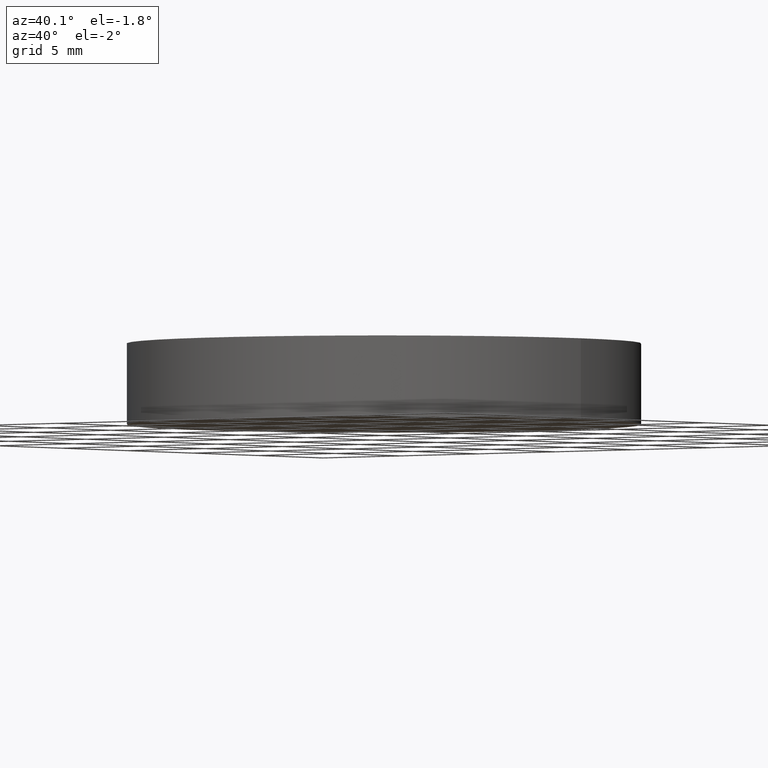
[diagram: clean part render]
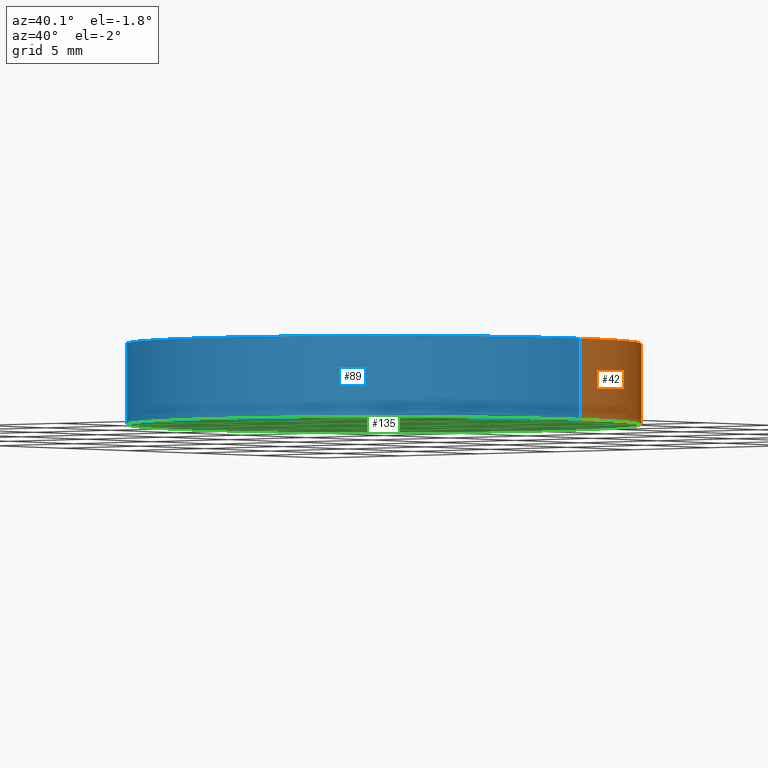
[diagram: same view with three faces highlighted in distinct colors, each labeled with its STEP entity id]
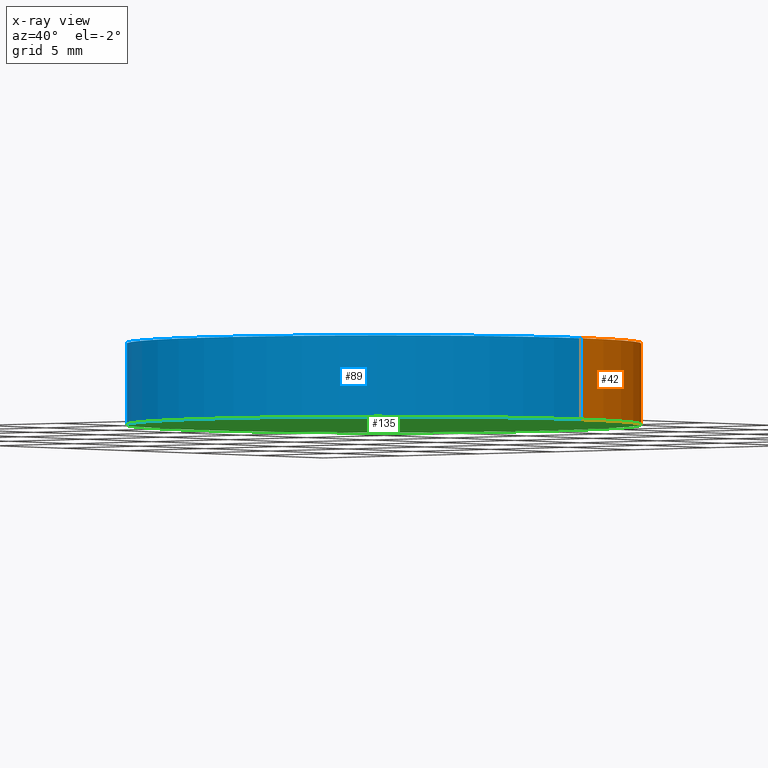
[diagram: x-ray of the same camera — body ghosted, the three highlighted faces saturated]
A machine part, auxiliary view with three faces highlighted in distinct colors.
The next image is the same camera in x-ray (body ghosted, the three faces saturated) — at least one of them is partly hidden behind the body in this view.
Their STEP definitions:

[orange] entity #42 — the highlighted cylindrical surface (partial cylindrical patch) has radius 12.7 mm, axis along (-0, -0, -1).
#4 = VERTEX_POINT ( 'NONE', #97 ) ;
#6 = CARTESIAN_POINT ( 'NONE',  ( 0.0000000000000000000, 0.0000000000000000000, 0.0000000000000000000 ) ) ;
#7 = DIRECTION ( 'NONE',  ( 0.0000000000000000000, 0.0000000000000000000, 1.000000000000000000 ) ) ;
#8 = CARTESIAN_POINT ( 'NONE',  ( -12.69999999999999900, 0.0000000000000000000, 4.000000000000000000 ) ) ;
#10 = EDGE_CURVE ( 'NONE', #4, #106, #130, .T. ) ;
#11 = ORIENTED_EDGE ( 'NONE', *, *, #10, .T. ) ;
#13 = FACE_OUTER_BOUND ( 'NONE', #60, .T. ) ;
#16 = EDGE_CURVE ( 'NONE', #73, #4, #107, .T. ) ;
#17 = VECTOR ( 'NONE', #57, 1000.000000000000000 ) ;
#18 = EDGE_CURVE ( 'NONE', #73, #91, #132, .T. ) ;
#21 = ORIENTED_EDGE ( 'NONE', *, *, #18, .F. ) ;
#26 = AXIS2_PLACEMENT_3D ( 'NONE', #6, #76, #134 ) ;
#34 = CARTESIAN_POINT ( 'NONE',  ( -12.69999999999999900, 0.0000000000000000000, 0.0000000000000000000 ) ) ;
#41 = CARTESIAN_POINT ( 'NONE',  ( 12.69999999999999900, 1.555301434917138400E-015, 4.000000000000000000 ) ) ;
#42 = ADVANCED_FACE ( 'NONE', ( #13 ), #131, .T. ) ;
#43 = DIRECTION ( 'NONE',  ( -1.000000000000000000, 0.0000000000000000000, 0.0000000000000000000 ) ) ;
#57 = DIRECTION ( 'NONE',  ( -0.0000000000000000000, -0.0000000000000000000, -1.000000000000000000 ) ) ;
#59 = DIRECTION ( 'NONE',  ( -0.0000000000000000000, -0.0000000000000000000, -1.000000000000000000 ) ) ;
#60 = EDGE_LOOP ( 'NONE', ( #21, #77, #11, #88 ) ) ;
#66 = CARTESIAN_POINT ( 'NONE',  ( 12.69999999999999900, 1.555301434917138400E-015, 4.000000000000000000 ) ) ;
#71 = EDGE_CURVE ( 'NONE', #91, #106, #72, .T. ) ;
#72 = LINE ( 'NONE', #96, #79 ) ;
#73 = VERTEX_POINT ( 'NONE', #41 ) ;
#74 = AXIS2_PLACEMENT_3D ( 'NONE', #99, #124, #43 ) ;
#76 = DIRECTION ( 'NONE',  ( 0.0000000000000000000, 0.0000000000000000000, 1.000000000000000000 ) ) ;
#77 = ORIENTED_EDGE ( 'NONE', *, *, #16, .T. ) ;
#79 = VECTOR ( 'NONE', #59, 1000.000000000000000 ) ;
#87 = AXIS2_PLACEMENT_3D ( 'NONE', #126, #7, #111 ) ;
#88 = ORIENTED_EDGE ( 'NONE', *, *, #71, .F. ) ;
#91 = VERTEX_POINT ( 'NONE', #8 ) ;
#96 = CARTESIAN_POINT ( 'NONE',  ( -12.69999999999999900, 0.0000000000000000000, 4.000000000000000000 ) ) ;
#97 = CARTESIAN_POINT ( 'NONE',  ( 12.69999999999999900, 1.555301434917138400E-015, 0.0000000000000000000 ) ) ;
#99 = CARTESIAN_POINT ( 'NONE',  ( 0.0000000000000000000, 0.0000000000000000000, 4.000000000000000000 ) ) ;
#106 = VERTEX_POINT ( 'NONE', #34 ) ;
#107 = LINE ( 'NONE', #66, #17 ) ;
#111 = DIRECTION ( 'NONE',  ( 1.000000000000000000, 0.0000000000000000000, 0.0000000000000000000 ) ) ;
#124 = DIRECTION ( 'NONE',  ( -0.0000000000000000000, -0.0000000000000000000, -1.000000000000000000 ) ) ;
#126 = CARTESIAN_POINT ( 'NONE',  ( 0.0000000000000000000, 0.0000000000000000000, 4.000000000000000000 ) ) ;
#130 = CIRCLE ( 'NONE', #26, 12.69999999999999900 ) ;
#131 = CYLINDRICAL_SURFACE ( 'NONE', #74, 12.69999999999999900 ) ;
#132 = CIRCLE ( 'NONE', #87, 12.69999999999999900 ) ;
#134 = DIRECTION ( 'NONE',  ( 1.000000000000000000, 0.0000000000000000000, 0.0000000000000000000 ) ) ;

[blue] entity #89 — the highlighted cylindrical surface (partial cylindrical patch) has radius 12.7 mm, axis along (-0, -0, -1).
#1 = EDGE_CURVE ( 'NONE', #91, #73, #121, .T. ) ;
#4 = VERTEX_POINT ( 'NONE', #97 ) ;
#8 = CARTESIAN_POINT ( 'NONE',  ( -12.69999999999999900, 0.0000000000000000000, 4.000000000000000000 ) ) ;
#15 = ORIENTED_EDGE ( 'NONE', *, *, #16, .F. ) ;
#16 = EDGE_CURVE ( 'NONE', #73, #4, #107, .T. ) ;
#17 = VECTOR ( 'NONE', #57, 1000.000000000000000 ) ;
#20 = ORIENTED_EDGE ( 'NONE', *, *, #1, .F. ) ;
#27 = ORIENTED_EDGE ( 'NONE', *, *, #71, .T. ) ;
#29 = CIRCLE ( 'NONE', #52, 12.69999999999999900 ) ;
#32 = DIRECTION ( 'NONE',  ( 1.000000000000000000, 0.0000000000000000000, 0.0000000000000000000 ) ) ;
#34 = CARTESIAN_POINT ( 'NONE',  ( -12.69999999999999900, 0.0000000000000000000, 0.0000000000000000000 ) ) ;
#39 = ORIENTED_EDGE ( 'NONE', *, *, #105, .T. ) ;
#41 = CARTESIAN_POINT ( 'NONE',  ( 12.69999999999999900, 1.555301434917138400E-015, 4.000000000000000000 ) ) ;
#46 = CARTESIAN_POINT ( 'NONE',  ( 0.0000000000000000000, 0.0000000000000000000, 0.0000000000000000000 ) ) ;
#52 = AXIS2_PLACEMENT_3D ( 'NONE', #46, #118, #61 ) ;
#57 = DIRECTION ( 'NONE',  ( -0.0000000000000000000, -0.0000000000000000000, -1.000000000000000000 ) ) ;
#59 = DIRECTION ( 'NONE',  ( -0.0000000000000000000, -0.0000000000000000000, -1.000000000000000000 ) ) ;
#61 = DIRECTION ( 'NONE',  ( 1.000000000000000000, 0.0000000000000000000, 0.0000000000000000000 ) ) ;
#66 = CARTESIAN_POINT ( 'NONE',  ( 12.69999999999999900, 1.555301434917138400E-015, 4.000000000000000000 ) ) ;
#71 = EDGE_CURVE ( 'NONE', #91, #106, #72, .T. ) ;
#72 = LINE ( 'NONE', #96, #79 ) ;
#73 = VERTEX_POINT ( 'NONE', #41 ) ;
#78 = DIRECTION ( 'NONE',  ( 0.0000000000000000000, 0.0000000000000000000, 1.000000000000000000 ) ) ;
#79 = VECTOR ( 'NONE', #59, 1000.000000000000000 ) ;
#86 = FACE_OUTER_BOUND ( 'NONE', #101, .T. ) ;
#89 = ADVANCED_FACE ( 'NONE', ( #86 ), #104, .T. ) ;
#91 = VERTEX_POINT ( 'NONE', #8 ) ;
#96 = CARTESIAN_POINT ( 'NONE',  ( -12.69999999999999900, 0.0000000000000000000, 4.000000000000000000 ) ) ;
#97 = CARTESIAN_POINT ( 'NONE',  ( 12.69999999999999900, 1.555301434917138400E-015, 0.0000000000000000000 ) ) ;
#100 = CARTESIAN_POINT ( 'NONE',  ( 0.0000000000000000000, 0.0000000000000000000, 4.000000000000000000 ) ) ;
#101 = EDGE_LOOP ( 'NONE', ( #15, #20, #27, #39 ) ) ;
#104 = CYLINDRICAL_SURFACE ( 'NONE', #120, 12.69999999999999900 ) ;
#105 = EDGE_CURVE ( 'NONE', #106, #4, #29, .T. ) ;
#106 = VERTEX_POINT ( 'NONE', #34 ) ;
#107 = LINE ( 'NONE', #66, #17 ) ;
#109 = AXIS2_PLACEMENT_3D ( 'NONE', #100, #78, #32 ) ;
#115 = DIRECTION ( 'NONE',  ( -0.0000000000000000000, -0.0000000000000000000, -1.000000000000000000 ) ) ;
#118 = DIRECTION ( 'NONE',  ( 0.0000000000000000000, 0.0000000000000000000, 1.000000000000000000 ) ) ;
#120 = AXIS2_PLACEMENT_3D ( 'NONE', #127, #115, #138 ) ;
#121 = CIRCLE ( 'NONE', #109, 12.69999999999999900 ) ;
#127 = CARTESIAN_POINT ( 'NONE',  ( 0.0000000000000000000, 0.0000000000000000000, 4.000000000000000000 ) ) ;
#138 = DIRECTION ( 'NONE',  ( -1.000000000000000000, 0.0000000000000000000, 0.0000000000000000000 ) ) ;

[green] entity #135 — the highlighted planar face has unit normal (0, 0, 1).
#4 = VERTEX_POINT ( 'NONE', #97 ) ;
#6 = CARTESIAN_POINT ( 'NONE',  ( 0.0000000000000000000, 0.0000000000000000000, 0.0000000000000000000 ) ) ;
#10 = EDGE_CURVE ( 'NONE', #4, #106, #130, .T. ) ;
#12 = EDGE_LOOP ( 'NONE', ( #133, #75 ) ) ;
#26 = AXIS2_PLACEMENT_3D ( 'NONE', #6, #76, #134 ) ;
#29 = CIRCLE ( 'NONE', #52, 12.69999999999999900 ) ;
#34 = CARTESIAN_POINT ( 'NONE',  ( -12.69999999999999900, 0.0000000000000000000, 0.0000000000000000000 ) ) ;
#46 = CARTESIAN_POINT ( 'NONE',  ( 0.0000000000000000000, 0.0000000000000000000, 0.0000000000000000000 ) ) ;
#52 = AXIS2_PLACEMENT_3D ( 'NONE', #46, #118, #61 ) ;
#61 = DIRECTION ( 'NONE',  ( 1.000000000000000000, 0.0000000000000000000, 0.0000000000000000000 ) ) ;
#75 = ORIENTED_EDGE ( 'NONE', *, *, #10, .F. ) ;
#76 = DIRECTION ( 'NONE',  ( 0.0000000000000000000, 0.0000000000000000000, 1.000000000000000000 ) ) ;
#82 = DIRECTION ( 'NONE',  ( 0.0000000000000000000, 0.0000000000000000000, 1.000000000000000000 ) ) ;
#83 = CARTESIAN_POINT ( 'NONE',  ( 0.0000000000000000000, 0.0000000000000000000, 0.0000000000000000000 ) ) ;
#93 = PLANE ( 'NONE',  #123 ) ;
#97 = CARTESIAN_POINT ( 'NONE',  ( 12.69999999999999900, 1.555301434917138400E-015, 0.0000000000000000000 ) ) ;
#102 = DIRECTION ( 'NONE',  ( 1.000000000000000000, 0.0000000000000000000, -0.0000000000000000000 ) ) ;
#105 = EDGE_CURVE ( 'NONE', #106, #4, #29, .T. ) ;
#106 = VERTEX_POINT ( 'NONE', #34 ) ;
#118 = DIRECTION ( 'NONE',  ( 0.0000000000000000000, 0.0000000000000000000, 1.000000000000000000 ) ) ;
#122 = FACE_OUTER_BOUND ( 'NONE', #12, .T. ) ;
#123 = AXIS2_PLACEMENT_3D ( 'NONE', #83, #82, #102 ) ;
#130 = CIRCLE ( 'NONE', #26, 12.69999999999999900 ) ;
#133 = ORIENTED_EDGE ( 'NONE', *, *, #105, .F. ) ;
#134 = DIRECTION ( 'NONE',  ( 1.000000000000000000, 0.0000000000000000000, 0.0000000000000000000 ) ) ;
#135 = ADVANCED_FACE ( 'NONE', ( #122 ), #93, .F. ) ;